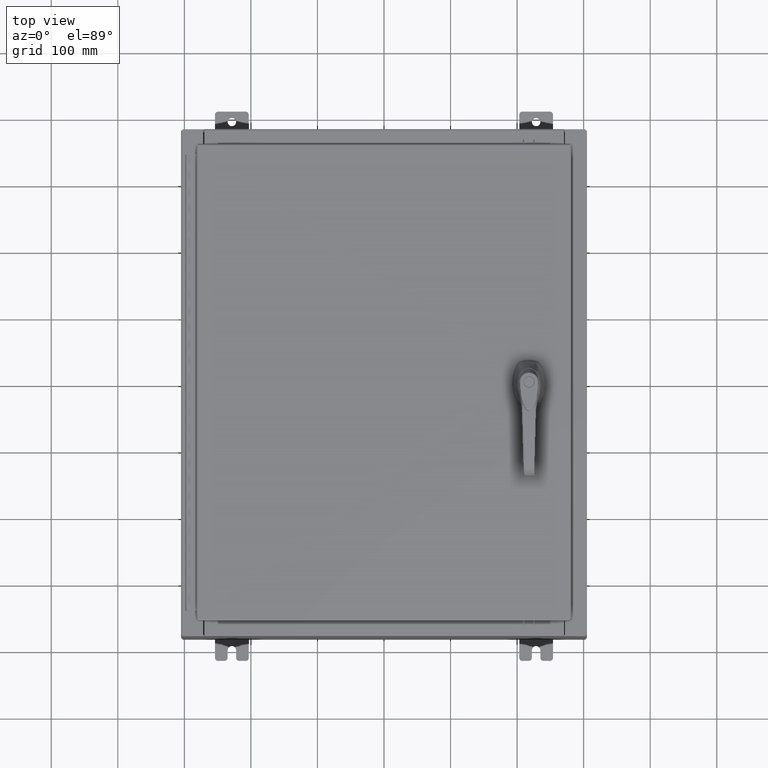
[diagram: clean part render]
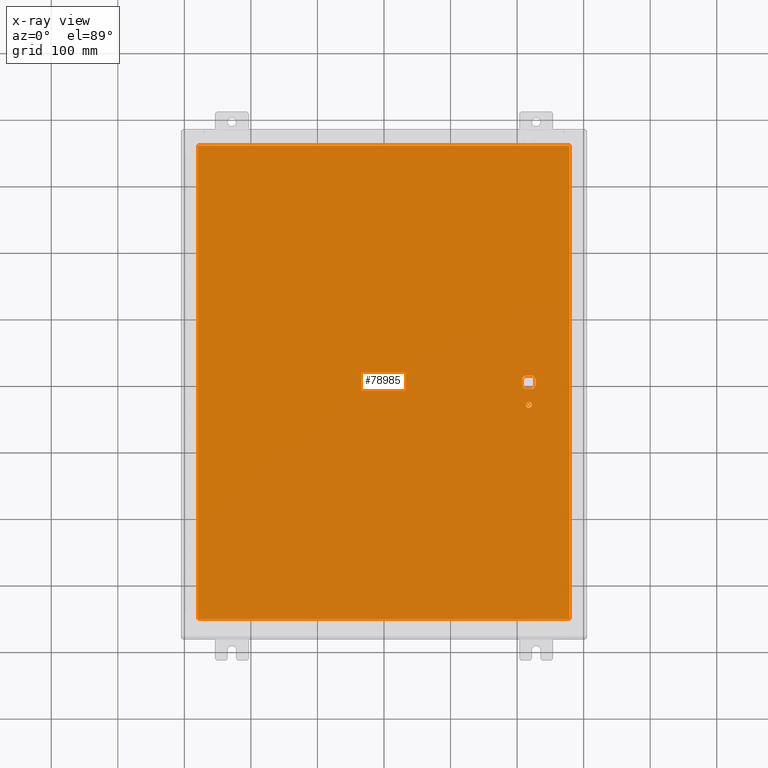
[diagram: x-ray — body ghosted, one internal face saturated and labeled with its STEP entity id]
A machine part, top view, then the same camera in x-ray: the body is ghosted and one INTERNAL B-rep face — a face not visible from any outside direction — is saturated and labeled: STEP entity #78985.
In plain terms, the highlighted planar face has unit normal (0, 0, -1).
Its self-contained STEP definition (entity closure, byte-faithful):
#159 = VERTEX_POINT ( 'NONE', #86757 ) ;
#351 = DIRECTION ( 'NONE',  ( -0.0000000000000000000, -0.0000000000000000000, 1.000000000000000000 ) ) ;
#406 = VERTEX_POINT ( 'NONE', #108136 ) ;
#1410 = VERTEX_POINT ( 'NONE', #25990 ) ;
#1763 = ORIENTED_EDGE ( 'NONE', *, *, #36184, .F. ) ;
#1854 = CARTESIAN_POINT ( 'NONE',  ( 10.99030000000000000, -14.00629999999999800, -0.07470000000000000300 ) ) ;
#1896 = EDGE_CURVE ( 'NONE', #67180, #13998, #46538, .T. ) ;
#2405 = LINE ( 'NONE', #80552, #118350 ) ;
#2645 = VECTOR ( 'NONE', #41041, 39.37007874015748100 ) ;
#4162 = LINE ( 'NONE', #71472, #65750 ) ;
#5168 = ORIENTED_EDGE ( 'NONE', *, *, #12387, .T. ) ;
#7872 = DIRECTION ( 'NONE',  ( -1.000000000000000000, 0.0000000000000000000, 0.0000000000000000000 ) ) ;
#8912 = AXIS2_PLACEMENT_3D ( 'NONE', #17035, #32184, #7872 ) ;
#9409 = CARTESIAN_POINT ( 'NONE',  ( 10.99030000000000000, -14.00629999999999800, -0.07470000000000019700 ) ) ;
#9982 = CARTESIAN_POINT ( 'NONE',  ( 10.99030000000000000, 14.00629999999999800, -0.07470000000000000300 ) ) ;
#10503 = ORIENTED_EDGE ( 'NONE', *, *, #23529, .T. ) ;
#10798 = CARTESIAN_POINT ( 'NONE',  ( 8.377772629243690300, 0.4029999999999252000, -0.07470000000000003000 ) ) ;
#12170 = FACE_BOUND ( 'NONE', #94564, .T. ) ;
#12349 = ORIENTED_EDGE ( 'NONE', *, *, #54098, .F. ) ;
#12387 = EDGE_CURVE ( 'NONE', #45432, #1410, #118036, .T. ) ;
#12987 = VERTEX_POINT ( 'NONE', #1854 ) ;
#13998 = VERTEX_POINT ( 'NONE', #116395 ) ;
#14102 = EDGE_CURVE ( 'NONE', #47081, #18071, #72069, .T. ) ;
#17035 = CARTESIAN_POINT ( 'NONE',  ( 8.577999999999999400, 0.0000000000000000000, -0.07470000000000003000 ) ) ;
#17574 = CARTESIAN_POINT ( 'NONE',  ( -10.99029999999999600, -14.00629999999999800, -0.07470000000000019700 ) ) ;
#17870 = LINE ( 'NONE', #54866, #112381 ) ;
#18071 = VERTEX_POINT ( 'NONE', #80630 ) ;
#18726 = CARTESIAN_POINT ( 'NONE',  ( 8.577999999999999400, 0.0000000000000000000, -0.07470000000000003000 ) ) ;
#18739 = CARTESIAN_POINT ( 'NONE',  ( 8.980999999999925300, 0.2002273707563080300, -0.07470000000000003000 ) ) ;
#19126 = VECTOR ( 'NONE', #81686, 39.37007874015748100 ) ;
#20573 = ORIENTED_EDGE ( 'NONE', *, *, #14102, .T. ) ;
#20799 = ORIENTED_EDGE ( 'NONE', *, *, #117350, .F. ) ;
#21069 = CARTESIAN_POINT ( 'NONE',  ( -10.99030000000000000, 14.00629999999999800, -0.07470000000000000300 ) ) ;
#23525 = AXIS2_PLACEMENT_3D ( 'NONE', #18726, #82823, #27927 ) ;
#23529 = EDGE_CURVE ( 'NONE', #406, #159, #90956, .T. ) ;
#23901 = CIRCLE ( 'NONE', #24815, 0.1715000000000011500 ) ;
#24366 = ORIENTED_EDGE ( 'NONE', *, *, #75881, .F. ) ;
#24815 = AXIS2_PLACEMENT_3D ( 'NONE', #53416, #117399, #62612 ) ;
#24958 = CARTESIAN_POINT ( 'NONE',  ( 8.577999999999999400, 0.0000000000000000000, -0.07470000000000003000 ) ) ;
#25990 = CARTESIAN_POINT ( 'NONE',  ( 8.175000000000073500, 0.2002273707563080300, -0.07470000000000003000 ) ) ;
#26376 = AXIS2_PLACEMENT_3D ( 'NONE', #55196, #351, #64377 ) ;
#26475 = DIRECTION ( 'NONE',  ( -0.0000000000000000000, -0.0000000000000000000, 1.000000000000000000 ) ) ;
#27927 = DIRECTION ( 'NONE',  ( -1.000000000000000000, 1.776356839400251300E-015, 0.0000000000000000000 ) ) ;
#28659 = PLANE ( 'NONE',  #62898 ) ;
#31002 = VERTEX_POINT ( 'NONE', #32051 ) ;
#32051 = CARTESIAN_POINT ( 'NONE',  ( 8.377772629243690300, -0.4029999999999250300, -0.07470000000000003000 ) ) ;
#32184 = DIRECTION ( 'NONE',  ( -0.0000000000000000000, -0.0000000000000000000, 1.000000000000000000 ) ) ;
#34179 = DIRECTION ( 'NONE',  ( -1.000000000000000000, 0.0000000000000000000, 0.0000000000000000000 ) ) ;
#36184 = EDGE_CURVE ( 'NONE', #12987, #103846, #69483, .T. ) ;
#36422 = DIRECTION ( 'NONE',  ( -1.000000000000000000, -0.0000000000000000000, -0.0000000000000000000 ) ) ;
#37627 = LINE ( 'NONE', #43560, #107771 ) ;
#37866 = DIRECTION ( 'NONE',  ( -1.000000000000000000, 0.0000000000000000000, -0.0000000000000000000 ) ) ;
#38819 = AXIS2_PLACEMENT_3D ( 'NONE', #24958, #89043, #34179 ) ;
#39252 = VECTOR ( 'NONE', #43701, 39.37007874015748100 ) ;
#41041 = DIRECTION ( 'NONE',  ( 0.0000000000000000000, -1.000000000000000000, 0.0000000000000000000 ) ) ;
#41780 = CIRCLE ( 'NONE', #74710, 0.4499999999999156900 ) ;
#42896 = ORIENTED_EDGE ( 'NONE', *, *, #69141, .T. ) ;
#43439 = DIRECTION ( 'NONE',  ( 1.000000000000000000, 0.0000000000000000000, 0.0000000000000000000 ) ) ;
#43560 = CARTESIAN_POINT ( 'NONE',  ( 0.0000000000000000000, 0.4029999999999252000, -0.07470000000000003000 ) ) ;
#43701 = DIRECTION ( 'NONE',  ( 0.0000000000000000000, -1.000000000000000000, 0.0000000000000000000 ) ) ;
#45432 = VERTEX_POINT ( 'NONE', #10798 ) ;
#46538 = CIRCLE ( 'NONE', #8912, 0.4499999999999156900 ) ;
#47081 = VERTEX_POINT ( 'NONE', #89107 ) ;
#50217 = ORIENTED_EDGE ( 'NONE', *, *, #1896, .T. ) ;
#51303 = ORIENTED_EDGE ( 'NONE', *, *, #74209, .T. ) ;
#51307 = LINE ( 'NONE', #114216, #2645 ) ;
#53416 = CARTESIAN_POINT ( 'NONE',  ( 8.577999999999999400, -1.338000000000000100, -0.07470000000000003000 ) ) ;
#54098 = EDGE_CURVE ( 'NONE', #113696, #70249, #112258, .T. ) ;
#54866 = CARTESIAN_POINT ( 'NONE',  ( 10.99030000000000000, 14.00629999999999800, -0.07470000000000019700 ) ) ;
#55196 = CARTESIAN_POINT ( 'NONE',  ( 8.577999999999999400, -1.338000000000000100, -0.07470000000000003000 ) ) ;
#60491 = EDGE_CURVE ( 'NONE', #31002, #47081, #4162, .T. ) ;
#62612 = DIRECTION ( 'NONE',  ( -1.000000000000000000, 0.0000000000000000000, 0.0000000000000000000 ) ) ;
#62898 = AXIS2_PLACEMENT_3D ( 'NONE', #82755, #92733, #37866 ) ;
#63272 = ORIENTED_EDGE ( 'NONE', *, *, #117369, .F. ) ;
#63746 = FACE_OUTER_BOUND ( 'NONE', #91597, .T. ) ;
#64377 = DIRECTION ( 'NONE',  ( -1.000000000000000000, 0.0000000000000000000, 0.0000000000000000000 ) ) ;
#65750 = VECTOR ( 'NONE', #43439, 39.37007874015748100 ) ;
#67180 = VERTEX_POINT ( 'NONE', #18739 ) ;
#69141 = EDGE_CURVE ( 'NONE', #13998, #45432, #37627, .T. ) ;
#69261 = VERTEX_POINT ( 'NONE', #90770 ) ;
#69483 = LINE ( 'NONE', #9409, #90975 ) ;
#70249 = VERTEX_POINT ( 'NONE', #112414 ) ;
#71472 = CARTESIAN_POINT ( 'NONE',  ( 0.0000000000000000000, -0.4029999999999252000, -0.07470000000000003000 ) ) ;
#72069 = CIRCLE ( 'NONE', #23525, 0.4499999999999156900 ) ;
#73377 = ORIENTED_EDGE ( 'NONE', *, *, #105092, .T. ) ;
#74209 = EDGE_CURVE ( 'NONE', #1410, #69261, #51307, .T. ) ;
#74710 = AXIS2_PLACEMENT_3D ( 'NONE', #81362, #26475, #90542 ) ;
#75881 = EDGE_CURVE ( 'NONE', #67180, #18071, #2405, .T. ) ;
#78985 = ADVANCED_FACE ( 'NONE', ( #12170, #63746, #85229 ), #28659, .T. ) ;
#80518 = CARTESIAN_POINT ( 'NONE',  ( -10.99030000000000000, 14.00630000000000100, -0.07470000000000019700 ) ) ;
#80552 = CARTESIAN_POINT ( 'NONE',  ( 8.980999999999925300, 2.450686610769032800E-014, -0.07470000000000003000 ) ) ;
#80630 = CARTESIAN_POINT ( 'NONE',  ( 8.980999999999925300, -0.2002273707563075900, -0.07470000000000003000 ) ) ;
#81362 = CARTESIAN_POINT ( 'NONE',  ( 8.577999999999999400, 0.0000000000000000000, -0.07470000000000003000 ) ) ;
#81686 = DIRECTION ( 'NONE',  ( 1.000000000000000000, -0.0000000000000000000, -0.0000000000000000000 ) ) ;
#82677 = DIRECTION ( 'NONE',  ( 0.0000000000000000000, 1.000000000000000000, 0.0000000000000000000 ) ) ;
#82755 = CARTESIAN_POINT ( 'NONE',  ( 0.0000000000000000000, 0.0000000000000000000, -0.07470000000000000300 ) ) ;
#82823 = DIRECTION ( 'NONE',  ( -0.0000000000000000000, -0.0000000000000000000, 1.000000000000000000 ) ) ;
#82842 = EDGE_CURVE ( 'NONE', #69261, #31002, #41780, .T. ) ;
#83905 = ORIENTED_EDGE ( 'NONE', *, *, #60491, .T. ) ;
#85229 = FACE_BOUND ( 'NONE', #117559, .T. ) ;
#86757 = CARTESIAN_POINT ( 'NONE',  ( 8.406499999999999400, -1.338000000000000100, -0.07470000000000003000 ) ) ;
#88805 = ORIENTED_EDGE ( 'NONE', *, *, #82842, .T. ) ;
#89043 = DIRECTION ( 'NONE',  ( -0.0000000000000000000, -0.0000000000000000000, 1.000000000000000000 ) ) ;
#89107 = CARTESIAN_POINT ( 'NONE',  ( 8.778227370756310300, -0.4029999999999252000, -0.07470000000000003000 ) ) ;
#89755 = DIRECTION ( 'NONE',  ( 2.728745808672812900E-015, -1.000000000000000000, 0.0000000000000000000 ) ) ;
#90542 = DIRECTION ( 'NONE',  ( -1.000000000000000000, 8.881784197001256300E-016, 0.0000000000000000000 ) ) ;
#90770 = CARTESIAN_POINT ( 'NONE',  ( 8.175000000000073500, -0.2002273707563079800, -0.07470000000000003000 ) ) ;
#90956 = CIRCLE ( 'NONE', #26376, 0.1715000000000011500 ) ;
#90975 = VECTOR ( 'NONE', #82677, 39.37007874015748100 ) ;
#91597 = EDGE_LOOP ( 'NONE', ( #1763, #20799, #12349, #63272 ) ) ;
#92733 = DIRECTION ( 'NONE',  ( 0.0000000000000000000, 0.0000000000000000000, -1.000000000000000000 ) ) ;
#94564 = EDGE_LOOP ( 'NONE', ( #10503, #73377 ) ) ;
#99183 = DIRECTION ( 'NONE',  ( -1.000000000000000000, 0.0000000000000000000, 0.0000000000000000000 ) ) ;
#103846 = VERTEX_POINT ( 'NONE', #9982 ) ;
#105092 = EDGE_CURVE ( 'NONE', #159, #406, #23901, .T. ) ;
#107771 = VECTOR ( 'NONE', #99183, 39.37007874015748100 ) ;
#108136 = CARTESIAN_POINT ( 'NONE',  ( 8.749500000000001200, -1.338000000000000100, -0.07470000000000003000 ) ) ;
#112258 = LINE ( 'NONE', #80518, #39252 ) ;
#112381 = VECTOR ( 'NONE', #36422, 39.37007874015748100 ) ;
#112414 = CARTESIAN_POINT ( 'NONE',  ( -10.99030000000000000, -14.00629999999999600, -0.07470000000000000300 ) ) ;
#113696 = VERTEX_POINT ( 'NONE', #21069 ) ;
#114216 = CARTESIAN_POINT ( 'NONE',  ( 8.175000000000073500, 0.0000000000000000000, -0.07470000000000003000 ) ) ;
#116395 = CARTESIAN_POINT ( 'NONE',  ( 8.778227370756310300, 0.4029999999999250300, -0.07470000000000003000 ) ) ;
#116496 = LINE ( 'NONE', #17574, #19126 ) ;
#117350 = EDGE_CURVE ( 'NONE', #70249, #12987, #116496, .T. ) ;
#117369 = EDGE_CURVE ( 'NONE', #103846, #113696, #17870, .T. ) ;
#117399 = DIRECTION ( 'NONE',  ( -0.0000000000000000000, -0.0000000000000000000, 1.000000000000000000 ) ) ;
#117559 = EDGE_LOOP ( 'NONE', ( #20573, #24366, #50217, #42896, #5168, #51303, #88805, #83905 ) ) ;
#118036 = CIRCLE ( 'NONE', #38819, 0.4499999999999156900 ) ;
#118350 = VECTOR ( 'NONE', #89755, 39.37007874015748100 ) ;